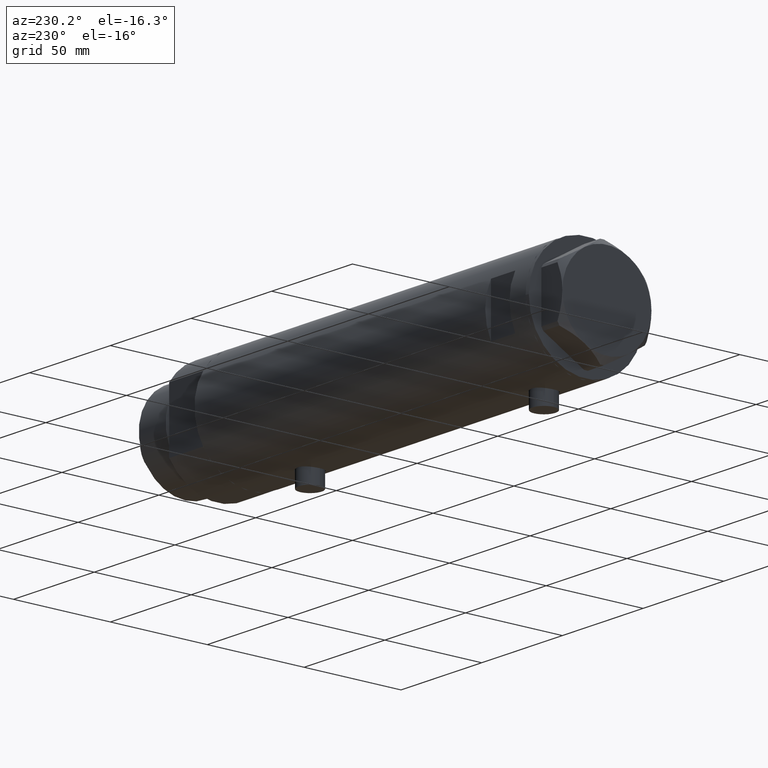
[diagram: clean part render]
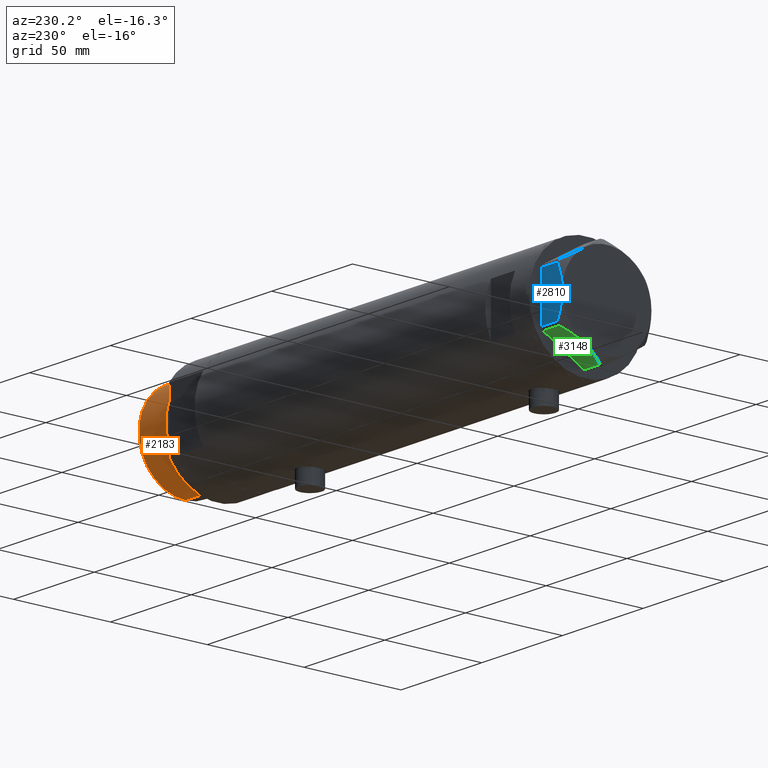
[diagram: same view with three faces highlighted in distinct colors, each labeled with its STEP entity id]
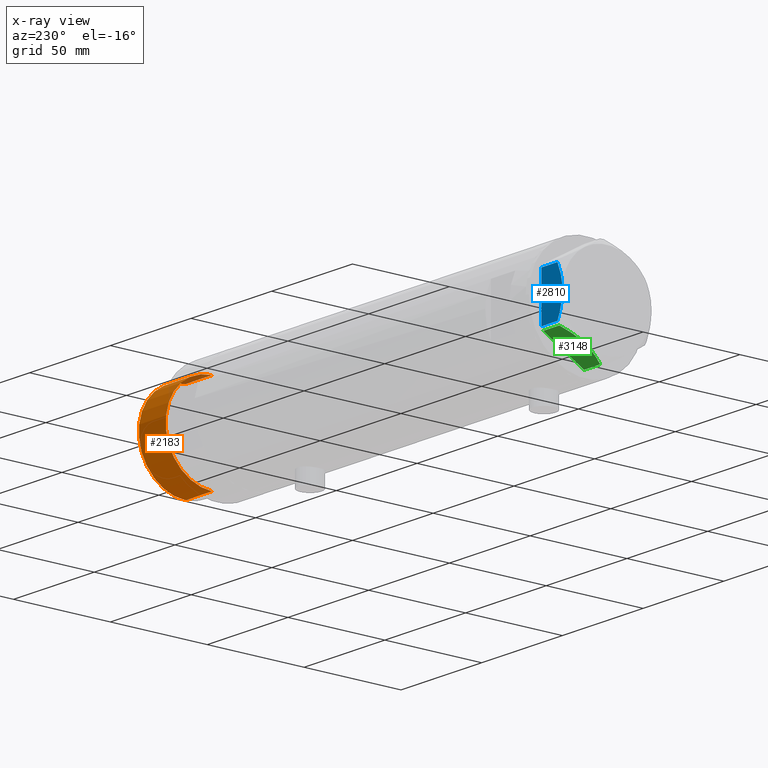
[diagram: x-ray of the same camera — body ghosted, the three highlighted faces saturated]
A machine part, auxiliary view with three faces highlighted in distinct colors.
The next image is the same camera in x-ray (body ghosted, the three faces saturated) — at least one of them is partly hidden behind the body in this view.
Their STEP definitions:

[orange] entity #2183 — the highlighted cylindrical surface (partial cylindrical patch) has radius 24 mm, axis along (-1, -0, 0).
#57 = CIRCLE ( 'NONE', #1145, 24.00000000000000355 ) ;
#262 = VERTEX_POINT ( 'NONE', #1529 ) ;
#293 = DIRECTION ( 'NONE',  ( -0.000000000000000000, -0.000000000000000000, -1.000000000000000000 ) ) ;
#530 = EDGE_CURVE ( 'NONE', #2788, #3690, #4388, .T. ) ;
#924 = VECTOR ( 'NONE', #3230, 1000.000000000000000 ) ;
#1087 = ORIENTED_EDGE ( 'NONE', *, *, #1173, .F. ) ;
#1145 = AXIS2_PLACEMENT_3D ( 'NONE', #2108, #3482, #4066 ) ;
#1156 = CARTESIAN_POINT ( 'NONE',  ( 24.00000000000000355, 2.939152317953648289E-15, 41.00000000000000000 ) ) ;
#1173 = EDGE_CURVE ( 'NONE', #3690, #2703, #4123, .T. ) ;
#1205 = EDGE_CURVE ( 'NONE', #262, #2703, #57, .T. ) ;
#1529 = CARTESIAN_POINT ( 'NONE',  ( 24.00000000000000355, 2.939152317953648289E-15, 24.37384048104054557 ) ) ;
#1561 = EDGE_LOOP ( 'NONE', ( #2702, #3595, #3275, #1087 ) ) ;
#1657 = FACE_OUTER_BOUND ( 'NONE', #1561, .T. ) ;
#1669 = CARTESIAN_POINT ( 'NONE',  ( -24.00000000000000355, 0.000000000000000000, 24.37384048104054557 ) ) ;
#1717 = AXIS2_PLACEMENT_3D ( 'NONE', #2762, #293, #4158 ) ;
#1853 = AXIS2_PLACEMENT_3D ( 'NONE', #1931, #3323, #3010 ) ;
#1931 = CARTESIAN_POINT ( 'NONE',  ( 0.000000000000000000, 0.000000000000000000, 41.00000000000000000 ) ) ;
#1991 = CYLINDRICAL_SURFACE ( 'NONE', #1717, 24.00000000000000355 ) ;
#2108 = CARTESIAN_POINT ( 'NONE',  ( 0.000000000000000000, 0.000000000000000000, 24.37384048104054557 ) ) ;
#2183 = ADVANCED_FACE ( 'NONE', ( #1657 ), #1991, .T. ) ;
#2430 = CARTESIAN_POINT ( 'NONE',  ( -24.00000000000000355, 0.000000000000000000, 41.00000000000000000 ) ) ;
#2702 = ORIENTED_EDGE ( 'NONE', *, *, #530, .F. ) ;
#2703 = VERTEX_POINT ( 'NONE', #1669 ) ;
#2753 = CARTESIAN_POINT ( 'NONE',  ( 24.00000000000000355, 2.939152317953648289E-15, 41.00000000000000000 ) ) ;
#2762 = CARTESIAN_POINT ( 'NONE',  ( 0.000000000000000000, 0.000000000000000000, 41.00000000000000000 ) ) ;
#2788 = VERTEX_POINT ( 'NONE', #2753 ) ;
#2914 = LINE ( 'NONE', #1156, #924 ) ;
#2999 = VECTOR ( 'NONE', #3099, 1000.000000000000000 ) ;
#3010 = DIRECTION ( 'NONE',  ( 1.000000000000000000, 0.000000000000000000, 0.000000000000000000 ) ) ;
#3099 = DIRECTION ( 'NONE',  ( -0.000000000000000000, -0.000000000000000000, -1.000000000000000000 ) ) ;
#3123 = CARTESIAN_POINT ( 'NONE',  ( -24.00000000000000355, 0.000000000000000000, 41.00000000000000000 ) ) ;
#3230 = DIRECTION ( 'NONE',  ( -0.000000000000000000, -0.000000000000000000, -1.000000000000000000 ) ) ;
#3275 = ORIENTED_EDGE ( 'NONE', *, *, #1205, .T. ) ;
#3323 = DIRECTION ( 'NONE',  ( 0.000000000000000000, 0.000000000000000000, 1.000000000000000000 ) ) ;
#3482 = DIRECTION ( 'NONE',  ( -0.000000000000000000, -0.000000000000000000, 1.000000000000000000 ) ) ;
#3595 = ORIENTED_EDGE ( 'NONE', *, *, #3836, .T. ) ;
#3690 = VERTEX_POINT ( 'NONE', #2430 ) ;
#3836 = EDGE_CURVE ( 'NONE', #2788, #262, #2914, .T. ) ;
#4066 = DIRECTION ( 'NONE',  ( 1.000000000000000000, 0.000000000000000000, 0.000000000000000000 ) ) ;
#4123 = LINE ( 'NONE', #3123, #2999 ) ;
#4158 = DIRECTION ( 'NONE',  ( -1.000000000000000000, 0.000000000000000000, 0.000000000000000000 ) ) ;
#4388 = CIRCLE ( 'NONE', #1853, 24.00000000000000355 ) ;

[blue] entity #2810 — the highlighted planar face has unit normal (0, -1, 0).
#45 = FACE_OUTER_BOUND ( 'NONE', #2557, .T. ) ;
#71 = CARTESIAN_POINT ( 'NONE',  ( 22.99999999999994671, 0.5295934231899315225, 13.00000000000009770 ) ) ;
#91 = CARTESIAN_POINT ( 'NONE',  ( 22.99999999999993960, 1.063773509315898647, 12.98143808360683060 ) ) ;
#151 = CARTESIAN_POINT ( 'NONE',  ( 22.99999999999992539, 2.119709279062088836, 12.90853521217320043 ) ) ;
#192 = LINE ( 'NONE', #1233, #3825 ) ;
#215 = CARTESIAN_POINT ( 'NONE',  ( 23.00000000000007461, -12.15905619136117721, 13.00000000000000000 ) ) ;
#251 = EDGE_CURVE ( 'NONE', #1103, #3001, #405, .T. ) ;
#371 = CARTESIAN_POINT ( 'NONE',  ( 23.00000000000001421, -6.734330413511261604, 12.03938974125266448 ) ) ;
#405 = B_SPLINE_CURVE_WITH_KNOTS ( 'NONE', 3,
 ( #2434, #4056, #2045, #1682, #3466, #2336, #371, #1022, #4460, #1315 ),
 .UNSPECIFIED., .F., .F.,
 ( 4, 2, 2, 2, 4 ),
 ( 0.03516523594057416324, 0.03831677594541234994, 0.03989254594783143981, 0.04146831595025052969, 0.04777139595992689614 ),
 .UNSPECIFIED. ) ;
#429 = CARTESIAN_POINT ( 'NONE',  ( 22.99999999999995026, 2.373657066004705010E-13, 13.00000000000000000 ) ) ;
#440 = B_SPLINE_CURVE_WITH_KNOTS ( 'NONE', 3,
 ( #429, #71, #91, #151, #2530, #1126, #3165, #4299, #1445, #799, #451, #1190, #2823, #844 ),
 .UNSPECIFIED., .F., .F.,
 ( 4, 2, 2, 2, 2, 2, 4 ),
 ( 0.04777139595992689614, 0.04934380568070229761, 0.05091621540147769215, 0.05406103484302849510, 0.05720585428457929111, 0.05877826400535468565, 0.06035067372613008713 ),
 .UNSPECIFIED. ) ;
#451 = CARTESIAN_POINT ( 'NONE',  ( 22.99999999999984723, 10.22738952213813590, 10.83247031367476687 ) ) ;
#584 = EDGE_CURVE ( 'NONE', #1259, #2971, #1267, .T. ) ;
#799 = CARTESIAN_POINT ( 'NONE',  ( 22.99999999999985434, 9.734726261263476843, 11.02892470009566139 ) ) ;
#844 = CARTESIAN_POINT ( 'NONE',  ( 22.99999999999982236, 12.15905619136166038, 9.983800287807609308 ) ) ;
#958 = DIRECTION ( 'NONE',  ( 1.032024811306395780E-14, -1.000000000000000000, 0.000000000000000000 ) ) ;
#1022 = CARTESIAN_POINT ( 'NONE',  ( 22.99999999999999289, -4.194757081058820170, 12.70300035152520479 ) ) ;
#1028 = CARTESIAN_POINT ( 'NONE',  ( 22.99999999999982236, 12.15905619136166571, 0.000000000000000000 ) ) ;
#1103 = VERTEX_POINT ( 'NONE', #1239 ) ;
#1126 = CARTESIAN_POINT ( 'NONE',  ( 22.99999999999990763, 4.203926054642130872, 12.64168122312251263 ) ) ;
#1190 = CARTESIAN_POINT ( 'NONE',  ( 22.99999999999984368, 11.20155944044835472, 10.42110268263274264 ) ) ;
#1233 = CARTESIAN_POINT ( 'NONE',  ( 23.00000000000008527, -13.27905619136115867, 0.000000000000000000 ) ) ;
#1239 = CARTESIAN_POINT ( 'NONE',  ( 23.00000000000007461, -12.15905619136117544, 9.983800287807614637 ) ) ;
#1259 = VERTEX_POINT ( 'NONE', #1028 ) ;
#1267 = LINE ( 'NONE', #3368, #1574 ) ;
#1276 = ORIENTED_EDGE ( 'NONE', *, *, #584, .T. ) ;
#1315 = CARTESIAN_POINT ( 'NONE',  ( 22.99999999999995026, 2.373657066004705010E-13, 13.00000000000000000 ) ) ;
#1416 = PLANE ( 'NONE',  #2802 ) ;
#1445 = CARTESIAN_POINT ( 'NONE',  ( 22.99999999999986500, 8.252113629125442884, 11.58164206268022056 ) ) ;
#1574 = VECTOR ( 'NONE', #3971, 1000.000000000000000 ) ;
#1682 = CARTESIAN_POINT ( 'NONE',  ( 23.00000000000004263, -8.748091966971225375, 11.39681897828457124 ) ) ;
#1691 = DIRECTION ( 'NONE',  ( -1.000000000000000000, -1.032024811306395780E-14, 0.000000000000000000 ) ) ;
#1779 = CARTESIAN_POINT ( 'NONE',  ( 22.99999999999995026, 2.373657066004705010E-13, 13.00000000000000000 ) ) ;
#1929 = VECTOR ( 'NONE', #3671, 1000.000000000000000 ) ;
#2045 = CARTESIAN_POINT ( 'NONE',  ( 23.00000000000005684, -10.23890159976106240, 10.84081242829091529 ) ) ;
#2135 = ORIENTED_EDGE ( 'NONE', *, *, #251, .F. ) ;
#2144 = EDGE_CURVE ( 'NONE', #1103, #4236, #3990, .T. ) ;
#2260 = DIRECTION ( 'NONE',  ( -1.032024811306395780E-14, 1.000000000000000000, 0.000000000000000000 ) ) ;
#2336 = CARTESIAN_POINT ( 'NONE',  ( 23.00000000000002132, -7.239756182922042704, 11.89218606342284978 ) ) ;
#2434 = CARTESIAN_POINT ( 'NONE',  ( 23.00000000000007461, -12.15905619136117544, 9.983800287807614637 ) ) ;
#2530 = CARTESIAN_POINT ( 'NONE',  ( 22.99999999999992184, 2.643615312305319875, 12.85430456063626714 ) ) ;
#2557 = EDGE_LOOP ( 'NONE', ( #2135, #2684, #3879, #1276, #4327 ) ) ;
#2684 = ORIENTED_EDGE ( 'NONE', *, *, #2144, .T. ) ;
#2795 = CARTESIAN_POINT ( 'NONE',  ( 23.00000000000008527, -13.27905619136115867, 13.00000000000000000 ) ) ;
#2802 = AXIS2_PLACEMENT_3D ( 'NONE', #2795, #1691, #958 ) ;
#2810 = ADVANCED_FACE ( 'NONE', ( #45 ), #1416, .F. ) ;
#2823 = CARTESIAN_POINT ( 'NONE',  ( 22.99999999999982947, 11.68282849742354301, 10.20637235269540888 ) ) ;
#2971 = VERTEX_POINT ( 'NONE', #3844 ) ;
#3001 = VERTEX_POINT ( 'NONE', #1779 ) ;
#3070 = CARTESIAN_POINT ( 'NONE',  ( 23.00000000000007461, -12.15905619136117721, 0.000000000000000000 ) ) ;
#3140 = EDGE_CURVE ( 'NONE', #4236, #1259, #192, .T. ) ;
#3165 = CARTESIAN_POINT ( 'NONE',  ( 22.99999999999990052, 5.228918809624289565, 12.43333703384985256 ) ) ;
#3368 = CARTESIAN_POINT ( 'NONE',  ( 22.99999999999982236, 12.15905619136166571, 13.00000000000000000 ) ) ;
#3466 = CARTESIAN_POINT ( 'NONE',  ( 23.00000000000003197, -8.246028007352199651, 11.57113180864690705 ) ) ;
#3671 = DIRECTION ( 'NONE',  ( 0.000000000000000000, 0.000000000000000000, -1.000000000000000000 ) ) ;
#3825 = VECTOR ( 'NONE', #2260, 1000.000000000000000 ) ;
#3844 = CARTESIAN_POINT ( 'NONE',  ( 22.99999999999982236, 12.15905619136166038, 9.983800287807609308 ) ) ;
#3879 = ORIENTED_EDGE ( 'NONE', *, *, #3140, .T. ) ;
#3971 = DIRECTION ( 'NONE',  ( 0.000000000000000000, 0.000000000000000000, 1.000000000000000000 ) ) ;
#3990 = LINE ( 'NONE', #215, #1929 ) ;
#4056 = CARTESIAN_POINT ( 'NONE',  ( 23.00000000000006750, -11.20825071633899483, 10.42817330637845608 ) ) ;
#4236 = VERTEX_POINT ( 'NONE', #3070 ) ;
#4299 = CARTESIAN_POINT ( 'NONE',  ( 22.99999999999987210, 7.253003311474555126, 11.90327681034763430 ) ) ;
#4327 = ORIENTED_EDGE ( 'NONE', *, *, #4340, .F. ) ;
#4340 = EDGE_CURVE ( 'NONE', #3001, #2971, #440, .T. ) ;
#4460 = CARTESIAN_POINT ( 'NONE',  ( 22.99999999999996447, -2.122900714017910584, 13.00000000000008882 ) ) ;

[green] entity #3148 — the highlighted planar face has unit normal (0, -0.5, 0.866).
#120 = VECTOR ( 'NONE', #2073, 1000.000000000000000 ) ;
#217 = VERTEX_POINT ( 'NONE', #520 ) ;
#318 = EDGE_CURVE ( 'NONE', #548, #1621, #3695, .T. ) ;
#384 = CARTESIAN_POINT ( 'NONE',  ( 0.9699484522385886098, 25.99811238272273783, 13.00000000000000000 ) ) ;
#416 = VECTOR ( 'NONE', #604, 999.9999999999998863 ) ;
#441 = ORIENTED_EDGE ( 'NONE', *, *, #1306, .T. ) ;
#501 = ORIENTED_EDGE ( 'NONE', *, *, #2807, .T. ) ;
#520 = CARTESIAN_POINT ( 'NONE',  ( 22.03005154776124996, 13.83905619136162635, 0.000000000000000000 ) ) ;
#523 = CARTESIAN_POINT ( 'NONE',  ( 3.925137811030053214, 24.29193301091819279, 11.39727285399137813 ) ) ;
#524 = FACE_OUTER_BOUND ( 'NONE', #1298, .T. ) ;
#548 = VERTEX_POINT ( 'NONE', #2277 ) ;
#604 = DIRECTION ( 'NONE',  ( -0.8660254037844415942, 0.4999999999999949485, 0.000000000000000000 ) ) ;
#680 = CARTESIAN_POINT ( 'NONE',  ( 22.03005154776124996, 13.83905619136162635, 13.00000000000000000 ) ) ;
#771 = CARTESIAN_POINT ( 'NONE',  ( 13.80210138309696788, 18.58946543380931260, 12.85271263895571181 ) ) ;
#812 = CARTESIAN_POINT ( 'NONE',  ( 18.67981377008996802, 15.77331687414936567, 11.62937486882604965 ) ) ;
#832 = CARTESIAN_POINT ( 'NONE',  ( 20.37350567916420374, 14.79546339452108228, 10.87778242614341728 ) ) ;
#882 = CARTESIAN_POINT ( 'NONE',  ( 4.357207709416042185, 24.04247733877631887, 11.57055225522968378 ) ) ;
#905 = DIRECTION ( 'NONE',  ( 0.8660254037844415942, -0.4999999999999948930, 0.000000000000000000 ) ) ;
#918 = AXIS2_PLACEMENT_3D ( 'NONE', #4042, #2323, #905 ) ;
#984 = CARTESIAN_POINT ( 'NONE',  ( 7.884645426989624895, 22.00591022298558741, 12.70765172847692526 ) ) ;
#1114 = CARTESIAN_POINT ( 'NONE',  ( 16.05322244309624224, 17.28978008384030929, 12.42689993760370015 ) ) ;
#1158 = ORIENTED_EDGE ( 'NONE', *, *, #1228, .F. ) ;
#1228 = EDGE_CURVE ( 'NONE', #1621, #4459, #3910, .T. ) ;
#1298 = EDGE_LOOP ( 'NONE', ( #3163, #441, #4154, #501, #1158 ) ) ;
#1306 = EDGE_CURVE ( 'NONE', #548, #217, #3791, .T. ) ;
#1324 = CARTESIAN_POINT ( 'NONE',  ( 9.678244919010090541, 20.97037507344921892, 13.00000000000000888 ) ) ;
#1547 = CARTESIAN_POINT ( 'NONE',  ( 11.95865151389051384, 19.65378171203322921, 13.00000000000000355 ) ) ;
#1621 = VERTEX_POINT ( 'NONE', #2136 ) ;
#1660 = CARTESIAN_POINT ( 'NONE',  ( 22.99999999999981171, 13.27905619136164184, 0.000000000000000000 ) ) ;
#1661 = CARTESIAN_POINT ( 'NONE',  ( 1.799196345396830266, 25.51934588838290452, 10.43131750950938930 ) ) ;
#1760 = EDGE_CURVE ( 'NONE', #217, #2869, #2982, .T. ) ;
#1761 = DIRECTION ( 'NONE',  ( 0.000000000000000000, 0.000000000000000000, 1.000000000000000000 ) ) ;
#1909 = PLANE ( 'NONE',  #918 ) ;
#2073 = DIRECTION ( 'NONE',  ( 0.000000000000000000, 0.000000000000000000, -1.000000000000000000 ) ) ;
#2107 = LINE ( 'NONE', #384, #4328 ) ;
#2136 = CARTESIAN_POINT ( 'NONE',  ( 11.49999999999990408, 19.91858428704219364, 13.00000000000000000 ) ) ;
#2141 = CARTESIAN_POINT ( 'NONE',  ( 15.16323225988329604, 17.80361615569442790, 12.63731396715686728 ) ) ;
#2208 = CARTESIAN_POINT ( 'NONE',  ( 12.41906678023027055, 19.38796083407295612, 12.98168640760940562 ) ) ;
#2277 = CARTESIAN_POINT ( 'NONE',  ( 22.03005154776139207, 13.83905619136154463, 9.983800287807527596 ) ) ;
#2323 = DIRECTION ( 'NONE',  ( -0.4999999999999948930, -0.8660254037844415942, 0.000000000000000000 ) ) ;
#2484 = CARTESIAN_POINT ( 'NONE',  ( 11.49999999999990408, 19.91858428704219364, 13.00000000000000000 ) ) ;
#2509 = CARTESIAN_POINT ( 'NONE',  ( 0.9699484522385886098, 25.99811238272273783, 0.000000000000000000 ) ) ;
#2510 = CARTESIAN_POINT ( 'NONE',  ( 5.671686373602804920, 23.28356272816407113, 12.04068176582928018 ) ) ;
#2611 = CARTESIAN_POINT ( 'NONE',  ( 0.9699484522385838359, 25.99811238272274139, 9.983800287807635954 ) ) ;
#2807 = EDGE_CURVE ( 'NONE', #2869, #4459, #2107, .T. ) ;
#2856 = CARTESIAN_POINT ( 'NONE',  ( 22.03005154776139207, 13.83905619136154463, 9.983800287807527596 ) ) ;
#2869 = VERTEX_POINT ( 'NONE', #2509 ) ;
#2982 = LINE ( 'NONE', #1660, #416 ) ;
#3034 = CARTESIAN_POINT ( 'NONE',  ( 0.9699484522385838359, 25.99811238272274139, 9.983800287807635954 ) ) ;
#3148 = ADVANCED_FACE ( 'NONE', ( #524 ), #1909, .F. ) ;
#3163 = ORIENTED_EDGE ( 'NONE', *, *, #318, .F. ) ;
#3302 = CARTESIAN_POINT ( 'NONE',  ( 2.640413878806743053, 25.03366871902166935, 10.84420102443836598 ) ) ;
#3695 = B_SPLINE_CURVE_WITH_KNOTS ( 'NONE', 3,
 ( #2856, #832, #812, #1114, #2141, #771, #4269, #2208, #1547, #2484 ),
 .UNSPECIFIED., .F., .F.,
 ( 4, 2, 2, 2, 4 ),
 ( 0.001228959670438484414, 0.007497079744270713011, 0.01063113978118682308, 0.01219816979964488159, 0.01376519981810293836 ),
 .UNSPECIFIED. ) ;
#3791 = LINE ( 'NONE', #680, #120 ) ;
#3910 = B_SPLINE_CURVE_WITH_KNOTS ( 'NONE', 3,
 ( #4433, #1324, #984, #2510, #4314, #882, #523, #3302, #1661, #3034 ),
 .UNSPECIFIED., .F., .F.,
 ( 4, 2, 2, 2, 4 ),
 ( 0.01376519981810293836, 0.01998941321701560442, 0.02154546656674377267, 0.02310151991647194092, 0.02621362661592828089 ),
 .UNSPECIFIED. ) ;
#4042 = CARTESIAN_POINT ( 'NONE',  ( 22.99999999999981171, 13.27905619136164184, 13.00000000000000000 ) ) ;
#4154 = ORIENTED_EDGE ( 'NONE', *, *, #1760, .T. ) ;
#4269 = CARTESIAN_POINT ( 'NONE',  ( 13.34348161667004362, 18.85424967941157703, 12.90784227772834392 ) ) ;
#4314 = CARTESIAN_POINT ( 'NONE',  ( 5.229981517798068857, 23.53858114556529912, 11.89212886775839451 ) ) ;
#4328 = VECTOR ( 'NONE', #1761, 1000.000000000000000 ) ;
#4433 = CARTESIAN_POINT ( 'NONE',  ( 11.49999999999990408, 19.91858428704219364, 13.00000000000000000 ) ) ;
#4459 = VERTEX_POINT ( 'NONE', #2611 ) ;